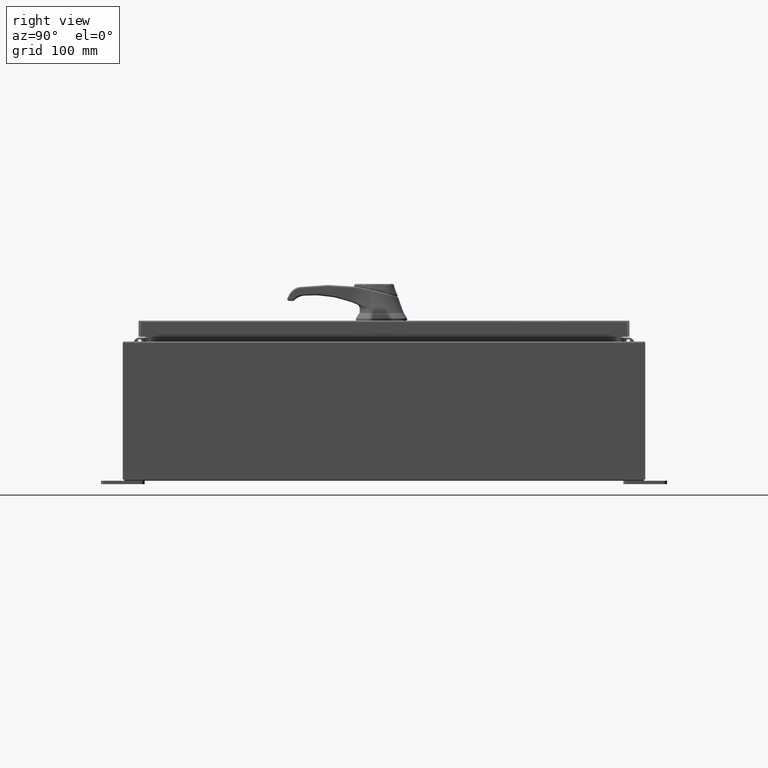
[diagram: clean part render]
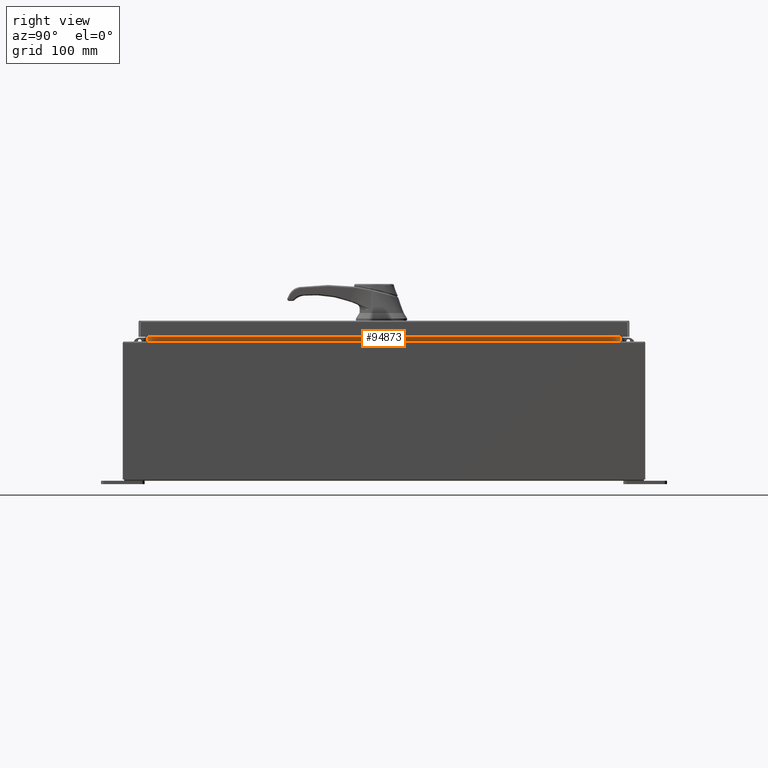
[diagram: same view with one face highlighted and labeled with its STEP entity id]
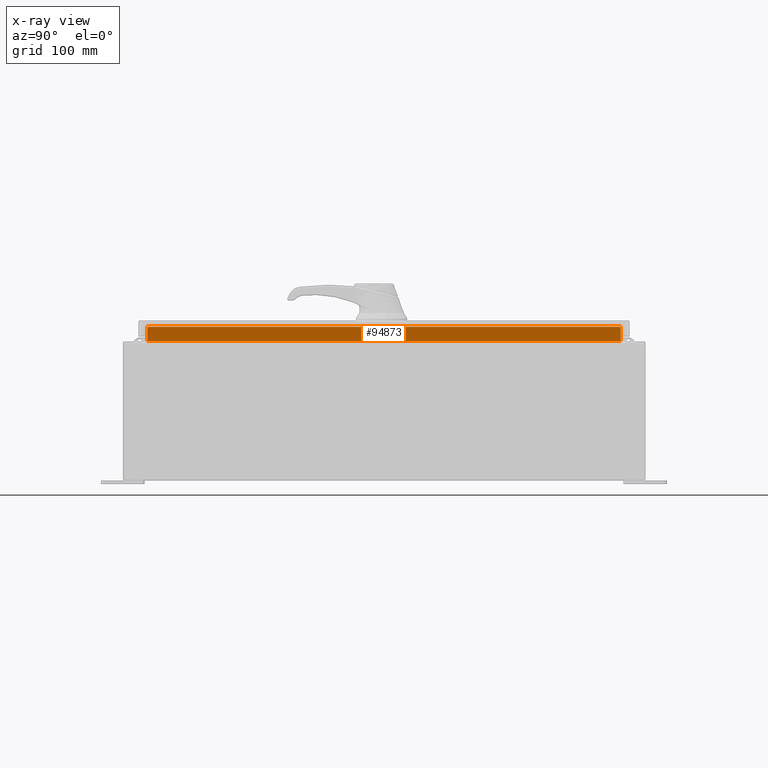
[diagram: x-ray of the same camera — body ghosted, the highlighted face saturated]
A machine part, right view. The second image highlights one B-rep face of the part: STEP entity #94873.
The next image is the same camera in x-ray: the body ghosted, the highlighted face saturated — about 0% of this face is hidden behind the body in this view.
In plain terms, the highlighted planar face has unit normal (1, 0, -0).
Its self-contained STEP definition (entity closure, byte-faithful):
#2612 = VERTEX_POINT ( 'NONE', #6304 ) ;
#6304 = CARTESIAN_POINT ( 'NONE',  ( 10.69970000000002800, 13.59375000000000200, 8.762900000000007200 ) ) ;
#6320 = PLANE ( 'NONE',  #105771 ) ;
#8195 = CARTESIAN_POINT ( 'NONE',  ( 10.69970000000002500, -13.59375000000000400, 7.938300000000009700 ) ) ;
#13251 = DIRECTION ( 'NONE',  ( 0.0000000000000000000, 1.000000000000000000, 0.0000000000000000000 ) ) ;
#15195 = CARTESIAN_POINT ( 'NONE',  ( 10.69970000000002800, -13.59375000000000200, 8.762900000000007200 ) ) ;
#16155 = EDGE_LOOP ( 'NONE', ( #22798, #35256, #21309, #117271 ) ) ;
#17220 = VERTEX_POINT ( 'NONE', #53718 ) ;
#19030 = VERTEX_POINT ( 'NONE', #29373 ) ;
#21309 = ORIENTED_EDGE ( 'NONE', *, *, #91664, .F. ) ;
#22798 = ORIENTED_EDGE ( 'NONE', *, *, #25759, .F. ) ;
#24470 = CARTESIAN_POINT ( 'NONE',  ( 10.69970000000000500, 0.0000000000000000000, -2.527176394925713500E-014 ) ) ;
#25759 = EDGE_CURVE ( 'NONE', #2612, #17220, #68189, .T. ) ;
#29302 = CARTESIAN_POINT ( 'NONE',  ( 10.69970000000002500, 13.59375000000000200, 7.938300000000007900 ) ) ;
#29373 = CARTESIAN_POINT ( 'NONE',  ( 10.69970000000002800, -13.59375000000000200, 8.762900000000007200 ) ) ;
#35256 = ORIENTED_EDGE ( 'NONE', *, *, #78239, .F. ) ;
#38515 = VECTOR ( 'NONE', #13251, 39.37007874015748100 ) ;
#43041 = DIRECTION ( 'NONE',  ( -2.361913319930196000E-015, 0.0000000000000000000, -1.000000000000000000 ) ) ;
#49305 = VECTOR ( 'NONE', #97861, 39.37007874015748100 ) ;
#53718 = CARTESIAN_POINT ( 'NONE',  ( 10.69970000000002500, 13.59375000000000400, 7.938300000000009700 ) ) ;
#56316 = LINE ( 'NONE', #29302, #104532 ) ;
#65514 = LINE ( 'NONE', #15195, #38515 ) ;
#67574 = CARTESIAN_POINT ( 'NONE',  ( 10.69970000000002500, 13.59375000000000200, 7.925300000000007100 ) ) ;
#68189 = LINE ( 'NONE', #67574, #113479 ) ;
#74462 = DIRECTION ( 'NONE',  ( 8.038541222736220000E-017, -1.000000000000000000, 1.607708244547244000E-016 ) ) ;
#76291 = LINE ( 'NONE', #88746, #49305 ) ;
#76661 = DIRECTION ( 'NONE',  ( -2.361913319930196000E-015, -0.0000000000000000000, -1.000000000000000000 ) ) ;
#78239 = EDGE_CURVE ( 'NONE', #19030, #2612, #65514, .T. ) ;
#88746 = CARTESIAN_POINT ( 'NONE',  ( 10.69970000000002800, -13.59375000000000200, 8.850600000000007100 ) ) ;
#90682 = EDGE_CURVE ( 'NONE', #17220, #93000, #56316, .T. ) ;
#91664 = EDGE_CURVE ( 'NONE', #93000, #19030, #76291, .T. ) ;
#93000 = VERTEX_POINT ( 'NONE', #8195 ) ;
#94873 = ADVANCED_FACE ( 'NONE', ( #104022 ), #6320, .T. ) ;
#97315 = DIRECTION ( 'NONE',  ( 1.000000000000000000, 0.0000000000000000000, -2.361913319930196000E-015 ) ) ;
#97861 = DIRECTION ( 'NONE',  ( 2.361913319930201500E-015, -0.0000000000000000000, 1.000000000000000000 ) ) ;
#104022 = FACE_OUTER_BOUND ( 'NONE', #16155, .T. ) ;
#104532 = VECTOR ( 'NONE', #74462, 39.37007874015748100 ) ;
#105771 = AXIS2_PLACEMENT_3D ( 'NONE', #24470, #97315, #43041 ) ;
#113479 = VECTOR ( 'NONE', #76661, 39.37007874015748100 ) ;
#117271 = ORIENTED_EDGE ( 'NONE', *, *, #90682, .F. ) ;